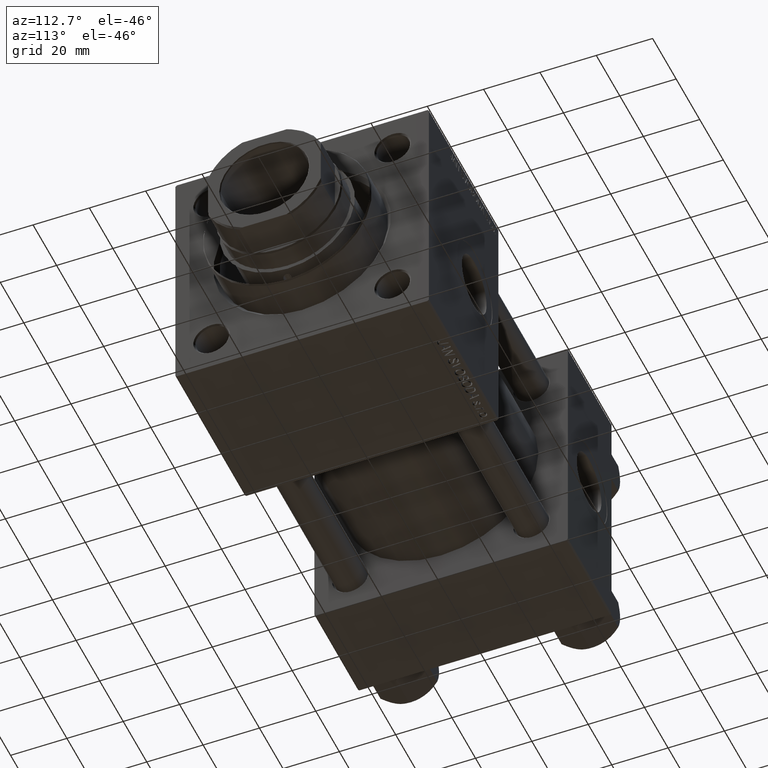
[diagram: clean part render]
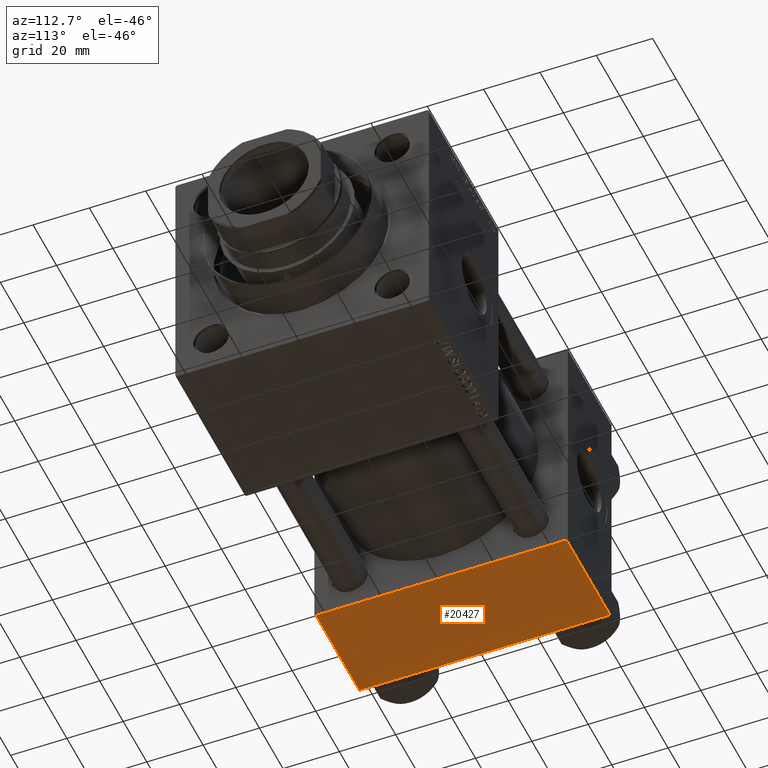
[diagram: same view with one face highlighted and labeled with its STEP entity id]
A machine part, auxiliary view. The second image highlights one B-rep face of the part: STEP entity #20427.
In plain terms, the highlighted planar face has unit normal (0, 0, -1).
Its self-contained STEP definition (entity closure, byte-faithful):
#474 = EDGE_CURVE ( 'NONE', #11233, #16710, #6765, .T. ) ;
#1316 = CARTESIAN_POINT ( 'NONE',  ( 37.00000000000000000, -44.49999999999995737, -45.00000000000000000 ) ) ;
#1872 = EDGE_LOOP ( 'NONE', ( #2378, #19946, #2785, #44875 ) ) ;
#2378 = ORIENTED_EDGE ( 'NONE', *, *, #13999, .F. ) ;
#2785 = ORIENTED_EDGE ( 'NONE', *, *, #7280, .T. ) ;
#3331 = CARTESIAN_POINT ( 'NONE',  ( 0.000000000000000000, -44.49999999999995737, -45.00000000000000000 ) ) ;
#3418 = CARTESIAN_POINT ( 'NONE',  ( 37.00000000000000000, 44.99999999999998579, -44.99999999999998579 ) ) ;
#4261 = LINE ( 'NONE', #36291, #45118 ) ;
#6765 = LINE ( 'NONE', #25582, #39969 ) ;
#7280 = EDGE_CURVE ( 'NONE', #16710, #44183, #4261, .T. ) ;
#7609 = VERTEX_POINT ( 'NONE', #3331 ) ;
#7716 = PLANE ( 'NONE',  #22711 ) ;
#8322 = CARTESIAN_POINT ( 'NONE',  ( 0.000000000000000000, -44.49999999999998579, -45.00000000000000000 ) ) ;
#9060 = DIRECTION ( 'NONE',  ( 0.000000000000000000, -1.000000000000000000, -1.541976423090495633E-16 ) ) ;
#11233 = VERTEX_POINT ( 'NONE', #45355 ) ;
#11286 = FACE_OUTER_BOUND ( 'NONE', #1872, .T. ) ;
#13999 = EDGE_CURVE ( 'NONE', #11233, #7609, #42952, .T. ) ;
#16710 = VERTEX_POINT ( 'NONE', #41536 ) ;
#18929 = DIRECTION ( 'NONE',  ( 0.000000000000000000, 1.541976423090495880E-16, -1.000000000000000000 ) ) ;
#19946 = ORIENTED_EDGE ( 'NONE', *, *, #474, .T. ) ;
#20277 = LINE ( 'NONE', #8322, #34396 ) ;
#20427 = ADVANCED_FACE ( 'NONE', ( #11286 ), #7716, .T. ) ;
#20538 = CARTESIAN_POINT ( 'NONE',  ( 0.000000000000000000, 44.99999999999998579, -44.99999999999998579 ) ) ;
#22711 = AXIS2_PLACEMENT_3D ( 'NONE', #3418, #18929, #46168 ) ;
#25328 = DIRECTION ( 'NONE',  ( 1.000000000000000000, 0.000000000000000000, 0.000000000000000000 ) ) ;
#25582 = CARTESIAN_POINT ( 'NONE',  ( 37.00000000000000000, 44.49999999999998579, -44.99999999999998579 ) ) ;
#27663 = DIRECTION ( 'NONE',  ( 0.000000000000000000, -1.000000000000000000, -1.541976423090495633E-16 ) ) ;
#28140 = DIRECTION ( 'NONE',  ( -1.000000000000000000, 0.000000000000000000, 0.000000000000000000 ) ) ;
#33537 = EDGE_CURVE ( 'NONE', #44183, #7609, #20277, .T. ) ;
#34396 = VECTOR ( 'NONE', #28140, 1000.000000000000000 ) ;
#36291 = CARTESIAN_POINT ( 'NONE',  ( 37.00000000000000000, 44.99999999999998579, -44.99999999999998579 ) ) ;
#39969 = VECTOR ( 'NONE', #25328, 1000.000000000000000 ) ;
#41536 = CARTESIAN_POINT ( 'NONE',  ( 37.00000000000000000, 44.49999999999998579, -44.99999999999998579 ) ) ;
#41994 = VECTOR ( 'NONE', #27663, 1000.000000000000000 ) ;
#42952 = LINE ( 'NONE', #20538, #41994 ) ;
#44183 = VERTEX_POINT ( 'NONE', #1316 ) ;
#44875 = ORIENTED_EDGE ( 'NONE', *, *, #33537, .T. ) ;
#45118 = VECTOR ( 'NONE', #9060, 1000.000000000000000 ) ;
#45355 = CARTESIAN_POINT ( 'NONE',  ( 0.000000000000000000, 44.49999999999998579, -44.99999999999998579 ) ) ;
#46168 = DIRECTION ( 'NONE',  ( 0.000000000000000000, 1.000000000000000000, 1.541976423090495880E-16 ) ) ;